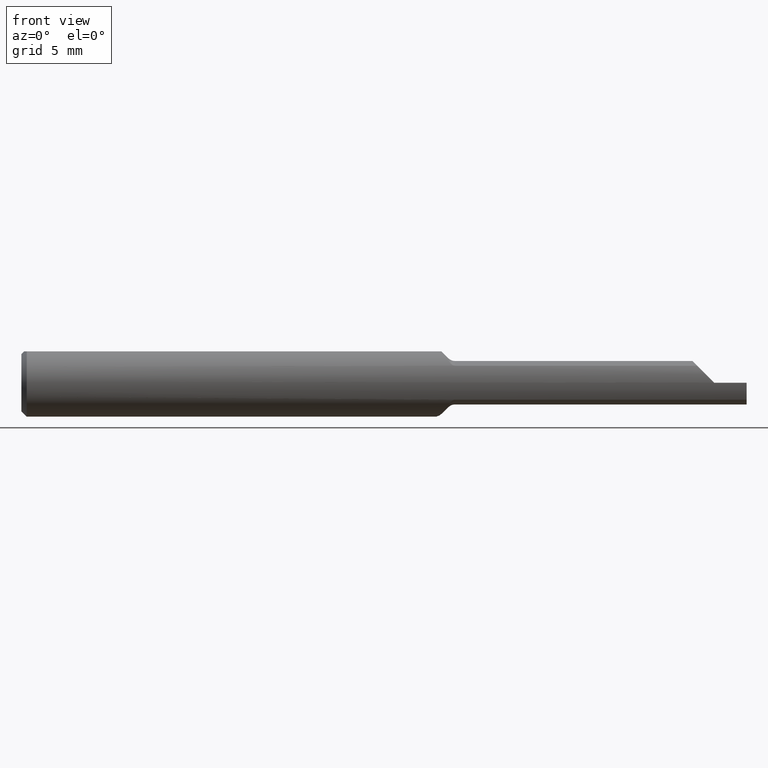
[diagram: clean part render]
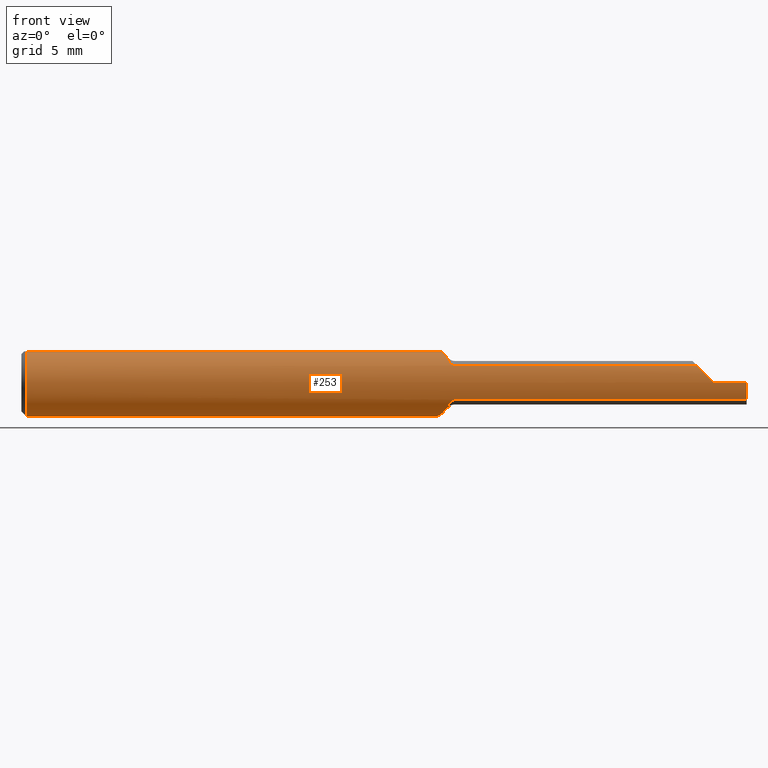
[diagram: same view with one face highlighted and labeled with its STEP entity id]
A machine part, front view. The second image highlights one B-rep face of the part: STEP entity #253.
In plain terms, the highlighted cylindrical surface (edge-blend (fillet) strip) has radius 2.3774 mm, axis along (-1, -0, -0).
Its self-contained STEP definition (entity closure, byte-faithful):
#9 = EDGE_CURVE ( 'NONE', #821, #905, #197, .T. ) ;
#10 = DIRECTION ( 'NONE',  ( -1.000000000000000000, -0.000000000000000000, -0.000000000000000000 ) ) ;
#14 = CARTESIAN_POINT ( 'NONE',  ( 1.177677669529663573, -0.07029385114728027573, -0.06180400060581843491 ) ) ;
#20 = ORIENTED_EDGE ( 'NONE', *, *, #640, .T. ) ;
#29 = CARTESIAN_POINT ( 'NONE',  ( 1.195355339059327227, -0.08098532110091744007, -0.04692907165266853309 ) ) ;
#34 = DIRECTION ( 'NONE',  ( 0.000000000000000000, 0.000000000000000000, -1.000000000000000000 ) ) ;
#41 = CARTESIAN_POINT ( 'NONE',  ( 0.01499999999999997689, 0.000000000000000000, 0.000000000000000000 ) ) ;
#48 = DIRECTION ( 'NONE',  ( 1.000000000000000000, -0.000000000000000000, -0.000000000000000000 ) ) ;
#50 = CARTESIAN_POINT ( 'NONE',  ( 1.159416727823433524, -0.03836044660242830806, -0.08558327217656613861 ) ) ;
#52 = VERTEX_POINT ( 'NONE', #931 ) ;
#57 = CARTESIAN_POINT ( 'NONE',  ( 1.115939244946420716, 0.06872653992798649636, -0.06386219844968339665 ) ) ;
#62 = CARTESIAN_POINT ( 'NONE',  ( 1.175214609688116418, -0.06649066471102259290, 0.06612962060800454955 ) ) ;
#66 = CARTESIAN_POINT ( 'NONE',  ( 1.190944544278904615, -0.08054755630905485742, 0.04769340736591585334 ) ) ;
#67 = CARTESIAN_POINT ( 'NONE',  ( 0.01499999999999997689, -0.03551619348973089618, 0.08659999999999998255 ) ) ;
#73 = CARTESIAN_POINT ( 'NONE',  ( 0.01499999999999997689, 0.000000000000000000, -0.09360000000000001652 ) ) ;
#84 = EDGE_LOOP ( 'NONE', ( #230, #301, #911, #990, #91, #832, #998, #770, #243, #20, #615, #1052, #342, #878, #999, #352 ) ) ;
#86 = DIRECTION ( 'NONE',  ( 0.000000000000000000, 0.000000000000000000, -1.000000000000000000 ) ) ;
#90 = CARTESIAN_POINT ( 'NONE',  ( 1.863470928347331190, -0.08098532110091731517, 0.04692907165266872044 ) ) ;
#91 = ORIENTED_EDGE ( 'NONE', *, *, #754, .T. ) ;
#92 = EDGE_CURVE ( 'NONE', #424, #905, #449, .T. ) ;
#97 = CIRCLE ( 'NONE', #154, 0.09360000000000001652 ) ;
#102 = VERTEX_POINT ( 'NONE', #609 ) ;
#103 = CARTESIAN_POINT ( 'NONE',  ( 1.877694541276184736, -0.08922756724162470010, 0.03270545872381536850 ) ) ;
#104 = CARTESIAN_POINT ( 'NONE',  ( 1.172653976226358141, -0.06232557759648701262, -0.07006481405258213613 ) ) ;
#111 = CARTESIAN_POINT ( 'NONE',  ( 1.167431899142503893, -0.05334778958292697715, -0.07712048455225353760 ) ) ;
#125 = CARTESIAN_POINT ( 'NONE',  ( 1.110152022803403415, 0.08625128397210295172, -0.03693757504936098085 ) ) ;
#131 = EDGE_CURVE ( 'NONE', #419, #294, #559, .T. ) ;
#132 = CARTESIAN_POINT ( 'NONE',  ( 1.128890268427389598, 0.03227618288569647498, -0.08807239227670381199 ) ) ;
#134 = VERTEX_POINT ( 'NONE', #737 ) ;
#135 = CARTESIAN_POINT ( 'NONE',  ( 1.181500133130178876, -0.07537161458921129431, -0.05560766583996930301 ) ) ;
#139 = CARTESIAN_POINT ( 'NONE',  ( 1.113252824815950559, 0.07676139857450872683, -0.05393890405065051435 ) ) ;
#154 = AXIS2_PLACEMENT_3D ( 'NONE', #207, #678, #34 ) ;
#160 = CARTESIAN_POINT ( 'NONE',  ( 2.000000000000000000, 0.000000000000000000, 0.000000000000000000 ) ) ;
#163 = CARTESIAN_POINT ( 'NONE',  ( 1.162174883036605211, -0.04359999999999998599, 0.08282511696339463214 ) ) ;
#166 = DIRECTION ( 'NONE',  ( 1.000000000000000000, -0.000000000000000000, -0.000000000000000000 ) ) ;
#168 = CARTESIAN_POINT ( 'NONE',  ( 1.567499999999999893, -0.08098532110091744007, 0.04692907165266853309 ) ) ;
#172 = AXIS2_PLACEMENT_3D ( 'NONE', #160, #238, #1062 ) ;
#173 = CARTESIAN_POINT ( 'NONE',  ( 1.160796085082294704, -0.04098075454507676268, 0.08420391491770511105 ) ) ;
#184 = VECTOR ( 'NONE', #719, 39.37007874015748143 ) ;
#197 = LINE ( 'NONE', #848, #314 ) ;
#207 = CARTESIAN_POINT ( 'NONE',  ( 2.000000000000000000, 0.000000000000000000, 0.000000000000000000 ) ) ;
#212 = B_SPLINE_CURVE_WITH_KNOTS ( 'NONE', 3,
 ( #422, #494, #104, #111, #663, #260 ),
 .UNSPECIFIED., .F., .F.,
 ( 4, 2, 4 ),
 ( 0.0005004335223145916405, 0.0009749534385090586827, 0.001449473354703525833 ),
 .UNSPECIFIED. ) ;
#215 = CARTESIAN_POINT ( 'NONE',  ( 1.112096236419457762, 0.08028148374112677177, -0.04856492361454633339 ) ) ;
#223 = CARTESIAN_POINT ( 'NONE',  ( 1.123563078640440471, 0.04680750307691888129, 0.08129727678532765178 ) ) ;
#229 = CARTESIAN_POINT ( 'NONE',  ( 1.135742326738735430, 0.01455546558514132609, -0.09266009913134311271 ) ) ;
#230 = ORIENTED_EDGE ( 'NONE', *, *, #720, .F. ) ;
#238 = DIRECTION ( 'NONE',  ( -1.000000000000000000, -0.000000000000000000, -0.000000000000000000 ) ) ;
#243 = ORIENTED_EDGE ( 'NONE', *, *, #805, .F. ) ;
#253 = ADVANCED_FACE ( 'NONE', ( #318 ), #881, .T. ) ;
#260 = CARTESIAN_POINT ( 'NONE',  ( 1.162174883036605211, -0.04359999999999998599, -0.08282511696339464602 ) ) ;
#261 =( BOUNDED_CURVE ( )  B_SPLINE_CURVE ( 3, ( #901, #906, #103, #412 ),
 .UNSPECIFIED., .F., .F. ) 
 B_SPLINE_CURVE_WITH_KNOTS ( ( 4, 4 ),
 ( 4.716662497666021636, 5.237580787391523884 ),
 .UNSPECIFIED. ) 
 CURVE ( )  GEOMETRIC_REPRESENTATION_ITEM ( )  RATIONAL_B_SPLINE_CURVE ( ( 1.000000000000000000, 0.9775145593731179305, 0.9775145593731179305, 1.000000000000000000 ) ) 
 REPRESENTATION_ITEM ( '' )  );
#281 = CARTESIAN_POINT ( 'NONE',  ( 1.119879818681998263, 0.05722188270721500353, 0.07433603228884144709 ) ) ;
#290 = CARTESIAN_POINT ( 'NONE',  ( 1.193082417335664003, -0.08098532110091741232, -0.04692907165266853309 ) ) ;
#292 = CARTESIAN_POINT ( 'NONE',  ( 1.115120089012976878, 0.07115311157076051329, 0.06114742213607383958 ) ) ;
#294 = VERTEX_POINT ( 'NONE', #90 ) ;
#296 = EDGE_CURVE ( 'NONE', #768, #424, #212, .T. ) ;
#298 = CARTESIAN_POINT ( 'NONE',  ( 1.108476095694653774, 0.09147652334571192145, 0.02088478041190031803 ) ) ;
#299 = EDGE_CURVE ( 'NONE', #407, #556, #758, .T. ) ;
#301 = ORIENTED_EDGE ( 'NONE', *, *, #884, .F. ) ;
#303 = CARTESIAN_POINT ( 'NONE',  ( 1.193089284779637715, -0.08098532110091745395, 0.04692907165266853309 ) ) ;
#307 = CARTESIAN_POINT ( 'NONE',  ( 1.162174883036605211, -0.04359999999999998599, -0.08282511696339464602 ) ) ;
#311 = CARTESIAN_POINT ( 'NONE',  ( 2.000000000000000000, -0.03551619348973089618, 0.08659999999999998255 ) ) ;
#314 = VECTOR ( 'NONE', #506, 39.37007874015748143 ) ;
#316 = CARTESIAN_POINT ( 'NONE',  ( 1.179435438298166883, -0.07300800458589504216, 0.05871701115635385992 ) ) ;
#318 = FACE_OUTER_BOUND ( 'NONE', #84, .T. ) ;
#322 = LINE ( 'NONE', #730, #572 ) ;
#339 = DIRECTION ( 'NONE',  ( -1.000000000000000000, -0.000000000000000000, -0.000000000000000000 ) ) ;
#342 = ORIENTED_EDGE ( 'NONE', *, *, #9, .T. ) ;
#348 = B_SPLINE_CURVE_WITH_KNOTS ( 'NONE', 3,
 ( #1034, #303, #66, #953, #393, #466, #316, #557 ),
 .UNSPECIFIED., .F., .F.,
 ( 4, 2, 2, 4 ),
 ( 0.000000000000000000, 0.0001696820906343288920, 0.0003393641812686577840, 0.0006787283625373214226 ),
 .UNSPECIFIED. ) ;
#352 = ORIENTED_EDGE ( 'NONE', *, *, #909, .T. ) ;
#362 = CARTESIAN_POINT ( 'NONE',  ( 1.133392098380112234, 0.02051992070829873963, -0.09152830773666507935 ) ) ;
#364 = CARTESIAN_POINT ( 'NONE',  ( 1.179434680320812445, -0.07300683420053004358, -0.05871834231443142510 ) ) ;
#366 = CARTESIAN_POINT ( 'NONE',  ( 1.125549505070181366, 0.04130584341940998078, 0.08422556204225992160 ) ) ;
#372 = CARTESIAN_POINT ( 'NONE',  ( 1.108300457160753982, 0.09202461176102580409, -0.01829547249540548065 ) ) ;
#375 = DIRECTION ( 'NONE',  ( 0.000000000000000000, 0.000000000000000000, -1.000000000000000000 ) ) ;
#385 = B_SPLINE_CURVE_WITH_KNOTS ( 'NONE', 3,
 ( #945, #364, #135, #765, #939, #682, #290, #29 ),
 .UNSPECIFIED., .F., .F.,
 ( 4, 2, 2, 4 ),
 ( 2.168404344971008868E-19, 0.0003360319779195267511, 0.0005040479668792896117, 0.0006720639558390524180 ),
 .UNSPECIFIED. ) ;
#389 = CARTESIAN_POINT ( 'NONE',  ( 0.01499999999999997689, 0.000000000000000000, 0.000000000000000000 ) ) ;
#393 = CARTESIAN_POINT ( 'NONE',  ( 1.185702228276974690, -0.07835280535911734456, 0.05123303017220877387 ) ) ;
#395 = DIRECTION ( 'NONE',  ( 1.000000000000000000, 0.000000000000000000, 0.000000000000000000 ) ) ;
#402 = CARTESIAN_POINT ( 'NONE',  ( 1.177677669529663573, -0.07029385114728024797, 0.06180400060581846960 ) ) ;
#407 = VERTEX_POINT ( 'NONE', #760 ) ;
#412 = CARTESIAN_POINT ( 'NONE',  ( 1.863470928347331190, -0.08098532110091731517, 0.04692907165266872044 ) ) ;
#419 = VERTEX_POINT ( 'NONE', #498 ) ;
#422 = CARTESIAN_POINT ( 'NONE',  ( 1.177677669529663573, -0.07029385114728027573, -0.06180400060581843491 ) ) ;
#424 = VERTEX_POINT ( 'NONE', #860 ) ;
#449 = B_SPLINE_CURVE_WITH_KNOTS ( 'NONE', 3,
 ( #307, #50, #468, #861, #526, #532, #537, #229, #362, #132, #464, #451, #550, #791, #57, #139, #215, #125, #684, #372, #1013, #697, #1031, #298, #873, #619, #949, #877, #292, #691, #281, #223, #366, #544 ),
 .UNSPECIFIED., .F., .F.,
 ( 4, 2, 2, 2, 2, 2, 2, 2, 2, 2, 2, 2, 2, 2, 2, 2, 4 ),
 ( 0.001449473354703525833, 0.001946690950049001544, 0.002443908545394477255, 0.002941126140739953182, 0.003438343736085428676, 0.003935561331430905037, 0.004432778926776380531, 0.004929996522121856892, 0.005427214117467331518, 0.005924431712812807012, 0.006421649308158282506, 0.006918866903503758867, 0.007416084498849234360, 0.007913302094194709854, 0.008410519689540187083, 0.008907737284885662576, 0.009404954880231138070 ),
 .UNSPECIFIED. ) ;
#451 = CARTESIAN_POINT ( 'NONE',  ( 1.122725758621180958, 0.04914086561991824753, -0.07990555479593192123 ) ) ;
#464 = CARTESIAN_POINT ( 'NONE',  ( 1.126719064373899348, 0.03812469162702813302, -0.08571015254603471523 ) ) ;
#466 = CARTESIAN_POINT ( 'NONE',  ( 1.181544521438683715, -0.07541641485153458002, 0.05554661397440850690 ) ) ;
#468 = CARTESIAN_POINT ( 'NONE',  ( 1.156623605259440080, -0.03278656602106045509, -0.08787223824268959593 ) ) ;
#483 = CARTESIAN_POINT ( 'NONE',  ( 1.164810682801531438, -0.04860711981243301394, 0.08018931719846873751 ) ) ;
#490 = AXIS2_PLACEMENT_3D ( 'NONE', #679, #10, #907 ) ;
#494 = CARTESIAN_POINT ( 'NONE',  ( 1.175228489598880044, -0.06651209654449299902, -0.06610524474079507162 ) ) ;
#498 = CARTESIAN_POINT ( 'NONE',  ( 1.195355339059327227, -0.08098532110091744007, 0.04692907165266853309 ) ) ;
#506 = DIRECTION ( 'NONE',  ( 1.000000000000000000, 0.000000000000000000, 0.000000000000000000 ) ) ;
#513 = CARTESIAN_POINT ( 'NONE',  ( 1.158023520836405362, -0.03551619348973038964, 0.08659999999999998255 ) ) ;
#520 = CIRCLE ( 'NONE', #1037, 0.09360000000000001652 ) ;
#525 = CARTESIAN_POINT ( 'NONE',  ( 1.910000000000000142, -0.09359914529524315796, 0.0004000000000000088012 ) ) ;
#526 = CARTESIAN_POINT ( 'NONE',  ( 1.148495826740103531, -0.01554707447101384178, -0.09249312004605585169 ) ) ;
#532 = CARTESIAN_POINT ( 'NONE',  ( 1.143265014012250447, -0.003655424042671432359, -0.09371940383682351994 ) ) ;
#537 = CARTESIAN_POINT ( 'NONE',  ( 1.140674899065930781, 0.002473900429620011238, -0.09376372094842914950 ) ) ;
#539 = VERTEX_POINT ( 'NONE', #603 ) ;
#544 = CARTESIAN_POINT ( 'NONE',  ( 1.127701525703423302, 0.03551619348973095169, 0.08659999999999998255 ) ) ;
#550 = CARTESIAN_POINT ( 'NONE',  ( 1.120885649790713590, 0.05435289654770203427, -0.07646389683077740862 ) ) ;
#556 = VERTEX_POINT ( 'NONE', #525 ) ;
#557 = CARTESIAN_POINT ( 'NONE',  ( 1.177677669529663573, -0.07029385114728024797, 0.06180400060581846960 ) ) ;
#559 = LINE ( 'NONE', #168, #1058 ) ;
#572 = VECTOR ( 'NONE', #631, 39.37007874015748143 ) ;
#583 = EDGE_CURVE ( 'NONE', #102, #407, #322, .T. ) ;
#584 = CARTESIAN_POINT ( 'NONE',  ( 1.159412477529317975, -0.03828698621588689371, 0.08546364883854391803 ) ) ;
#586 = VERTEX_POINT ( 'NONE', #73 ) ;
#587 = CARTESIAN_POINT ( 'NONE',  ( 1.162174883036605211, -0.04359999999999998599, 0.08282511696339463214 ) ) ;
#603 = CARTESIAN_POINT ( 'NONE',  ( 1.195355339059327227, -0.08098532110091744007, -0.04692907165266853309 ) ) ;
#609 = CARTESIAN_POINT ( 'NONE',  ( 2.000000000000000000, -0.09359999999999989162, -6.429183357567480113E-17 ) ) ;
#615 = ORIENTED_EDGE ( 'NONE', *, *, #941, .T. ) ;
#619 = CARTESIAN_POINT ( 'NONE',  ( 1.110511327969830875, 0.08514595224235761706, 0.03941142604992352305 ) ) ;
#631 = DIRECTION ( 'NONE',  ( -1.000000000000000000, -0.000000000000000000, -0.000000000000000000 ) ) ;
#638 = B_SPLINE_CURVE_WITH_KNOTS ( 'NONE', 3,
 ( #513, #584, #173, #587 ),
 .UNSPECIFIED., .F., .F.,
 ( 4, 4 ),
 ( 5.729164479866365766E-07, 0.0002485545944389318403 ),
 .UNSPECIFIED. ) ;
#640 = EDGE_CURVE ( 'NONE', #52, #655, #800, .T. ) ;
#646 = VERTEX_POINT ( 'NONE', #880 ) ;
#651 = B_SPLINE_CURVE_WITH_KNOTS ( 'NONE', 3,
 ( #163, #483, #894, #809, #62, #402 ),
 .UNSPECIFIED., .F., .F.,
 ( 4, 2, 4 ),
 ( 0.0002485545944389318403, 0.0007226124841471870484, 0.001196670373855441985 ),
 .UNSPECIFIED. ) ;
#655 = VERTEX_POINT ( 'NONE', #67 ) ;
#663 = CARTESIAN_POINT ( 'NONE',  ( 1.164807130151062520, -0.04860037098925394650, -0.08019286984893746195 ) ) ;
#678 = DIRECTION ( 'NONE',  ( 1.000000000000000000, 0.000000000000000000, 0.000000000000000000 ) ) ;
#679 = CARTESIAN_POINT ( 'NONE',  ( 1.910000000000000142, 0.000000000000000000, 0.000000000000000000 ) ) ;
#682 = CARTESIAN_POINT ( 'NONE',  ( 1.190919469471275693, -0.08054306570030632384, -0.04770147238164964415 ) ) ;
#684 = CARTESIAN_POINT ( 'NONE',  ( 1.109393831565363975, 0.08861025287414570073, -0.03084601382962845126 ) ) ;
#691 = CARTESIAN_POINT ( 'NONE',  ( 1.118166364789387579, 0.06218498935449452703, 0.07024812893643296585 ) ) ;
#692 = EDGE_CURVE ( 'NONE', #747, #646, #651, .T. ) ;
#697 = CARTESIAN_POINT ( 'NONE',  ( 1.107730217382799198, 0.09381949476875167671, 0.001379171797657512740 ) ) ;
#707 = EDGE_CURVE ( 'NONE', #586, #821, #948, .T. ) ;
#719 = DIRECTION ( 'NONE',  ( -1.000000000000000000, -0.000000000000000000, -0.000000000000000000 ) ) ;
#720 = EDGE_CURVE ( 'NONE', #134, #539, #736, .T. ) ;
#730 = CARTESIAN_POINT ( 'NONE',  ( 2.000000000000000000, -0.09360000000000001652, -6.429183357567480113E-17 ) ) ;
#736 = LINE ( 'NONE', #1044, #813 ) ;
#737 = CARTESIAN_POINT ( 'NONE',  ( 2.000000000000000000, -0.08098532110091745395, -0.04692907165266857472 ) ) ;
#744 = CARTESIAN_POINT ( 'NONE',  ( 0.01499999999999997689, 0.03551619348973089618, 0.08659999999999998255 ) ) ;
#747 = VERTEX_POINT ( 'NONE', #910 ) ;
#754 = EDGE_CURVE ( 'NONE', #556, #294, #261, .T. ) ;
#758 = CIRCLE ( 'NONE', #490, 0.09360000000000001652 ) ;
#760 = CARTESIAN_POINT ( 'NONE',  ( 1.910000000000000142, -0.09359999999999998876, -6.429183357567478880E-17 ) ) ;
#765 = CARTESIAN_POINT ( 'NONE',  ( 1.185639508677811316, -0.07831503026254457711, -0.05129082989646367718 ) ) ;
#768 = VERTEX_POINT ( 'NONE', #14 ) ;
#770 = ORIENTED_EDGE ( 'NONE', *, *, #692, .F. ) ;
#791 = CARTESIAN_POINT ( 'NONE',  ( 1.117491920919020609, 0.06414576699549906502, -0.06845644935455030833 ) ) ;
#800 = LINE ( 'NONE', #311, #184 ) ;
#805 = EDGE_CURVE ( 'NONE', #52, #747, #638, .T. ) ;
#809 = CARTESIAN_POINT ( 'NONE',  ( 1.172622669439097987, -0.06227274567056488574, 0.07010914062757189757 ) ) ;
#813 = VECTOR ( 'NONE', #339, 39.37007874015748143 ) ;
#821 = VERTEX_POINT ( 'NONE', #744 ) ;
#832 = ORIENTED_EDGE ( 'NONE', *, *, #131, .F. ) ;
#848 = CARTESIAN_POINT ( 'NONE',  ( 2.000000000000000000, 0.03551619348973089618, 0.08659999999999998255 ) ) ;
#860 = CARTESIAN_POINT ( 'NONE',  ( 1.162174883036605211, -0.04359999999999998599, -0.08282511696339464602 ) ) ;
#861 = CARTESIAN_POINT ( 'NONE',  ( 1.151162578112212342, -0.02137516006684738942, -0.09132136495557881262 ) ) ;
#873 = CARTESIAN_POINT ( 'NONE',  ( 1.109020195642277828, 0.08977100142499537527, 0.02728114714779977801 ) ) ;
#877 = CARTESIAN_POINT ( 'NONE',  ( 1.113785744349288231, 0.07515970287789003335, 0.05615941996324870511 ) ) ;
#878 = ORIENTED_EDGE ( 'NONE', *, *, #92, .F. ) ;
#880 = CARTESIAN_POINT ( 'NONE',  ( 1.177677669529663573, -0.07029385114728024797, 0.06180400060581846960 ) ) ;
#881 = CYLINDRICAL_SURFACE ( 'NONE', #172, 0.09360000000000001652 ) ;
#884 = EDGE_CURVE ( 'NONE', #102, #134, #97, .T. ) ;
#894 = CARTESIAN_POINT ( 'NONE',  ( 1.167429827598531533, -0.05334323113763464463, 0.07712124314794462088 ) ) ;
#901 = CARTESIAN_POINT ( 'NONE',  ( 1.910000000000000142, -0.09359914529524315796, 0.0004000000000000088012 ) ) ;
#905 = VERTEX_POINT ( 'NONE', #1006 ) ;
#906 = CARTESIAN_POINT ( 'NONE',  ( 1.893560996053938350, -0.09352889250011661715, 0.01683900394606155024 ) ) ;
#907 = DIRECTION ( 'NONE',  ( 0.000000000000000000, 0.000000000000000000, 1.000000000000000000 ) ) ;
#909 = EDGE_CURVE ( 'NONE', #768, #539, #385, .T. ) ;
#910 = CARTESIAN_POINT ( 'NONE',  ( 1.162174883036605211, -0.04359999999999998599, 0.08282511696339463214 ) ) ;
#911 = ORIENTED_EDGE ( 'NONE', *, *, #583, .T. ) ;
#913 = AXIS2_PLACEMENT_3D ( 'NONE', #389, #166, #86 ) ;
#931 = CARTESIAN_POINT ( 'NONE',  ( 1.158023520836405362, -0.03551619348973038964, 0.08659999999999998255 ) ) ;
#939 = CARTESIAN_POINT ( 'NONE',  ( 1.187216637231162109, -0.07920126791852327708, -0.04989764583504367051 ) ) ;
#941 = EDGE_CURVE ( 'NONE', #655, #586, #520, .T. ) ;
#945 = CARTESIAN_POINT ( 'NONE',  ( 1.177677669529663573, -0.07029385114728027573, -0.06180400060581843491 ) ) ;
#948 = CIRCLE ( 'NONE', #913, 0.09360000000000001652 ) ;
#949 = CARTESIAN_POINT ( 'NONE',  ( 1.111475077763426800, 0.08217488604661304930, 0.04527857650729996686 ) ) ;
#953 = CARTESIAN_POINT ( 'NONE',  ( 1.187270107998831037, -0.07922514269342439963, 0.04985926893505460838 ) ) ;
#963 = EDGE_CURVE ( 'NONE', #419, #646, #348, .T. ) ;
#990 = ORIENTED_EDGE ( 'NONE', *, *, #299, .T. ) ;
#998 = ORIENTED_EDGE ( 'NONE', *, *, #963, .T. ) ;
#999 = ORIENTED_EDGE ( 'NONE', *, *, #296, .F. ) ;
#1006 = CARTESIAN_POINT ( 'NONE',  ( 1.127701525703423302, 0.03551619348973095169, 0.08659999999999998255 ) ) ;
#1013 = CARTESIAN_POINT ( 'NONE',  ( 1.107960659897338829, 0.09309458096140459105, -0.01172171954671190862 ) ) ;
#1031 = CARTESIAN_POINT ( 'NONE',  ( 1.107832322352278576, 0.09349711215871499281, 0.007900531263943164767 ) ) ;
#1034 = CARTESIAN_POINT ( 'NONE',  ( 1.195355339059327227, -0.08098532110091744007, 0.04692907165266853309 ) ) ;
#1037 = AXIS2_PLACEMENT_3D ( 'NONE', #41, #48, #375 ) ;
#1044 = CARTESIAN_POINT ( 'NONE',  ( 1.567499999999999893, -0.08098532110091744007, -0.04692907165266853309 ) ) ;
#1052 = ORIENTED_EDGE ( 'NONE', *, *, #707, .T. ) ;
#1058 = VECTOR ( 'NONE', #395, 39.37007874015748143 ) ;
#1062 = DIRECTION ( 'NONE',  ( 0.000000000000000000, 0.000000000000000000, 1.000000000000000000 ) ) ;